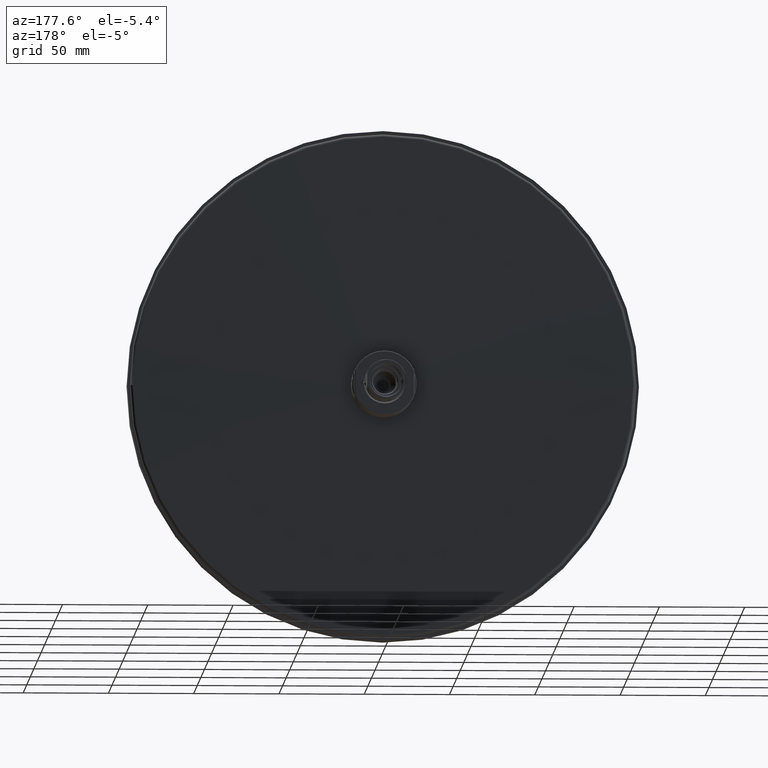
[diagram: clean part render]
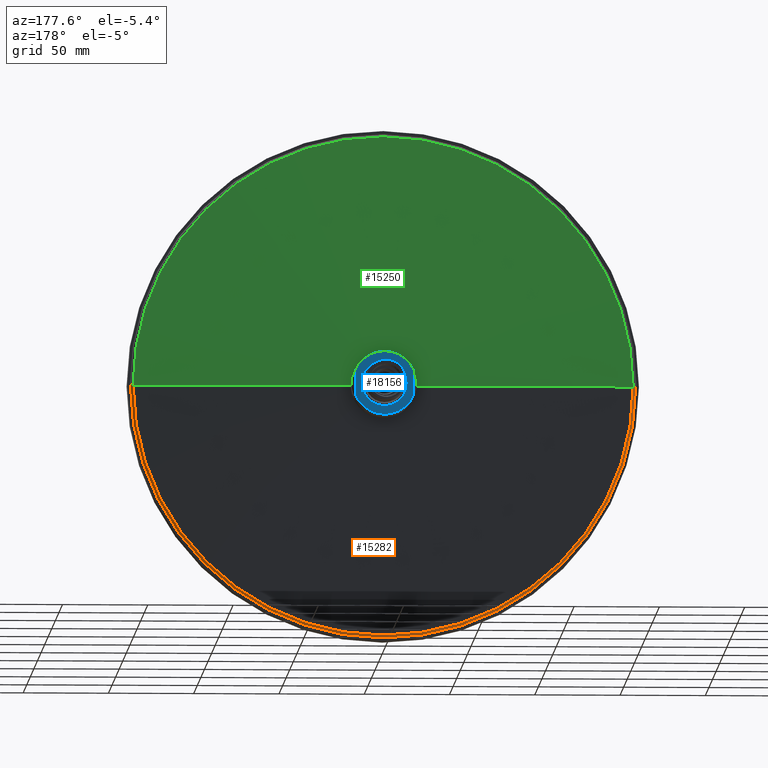
[diagram: same view with three faces highlighted in distinct colors, each labeled with its STEP entity id]
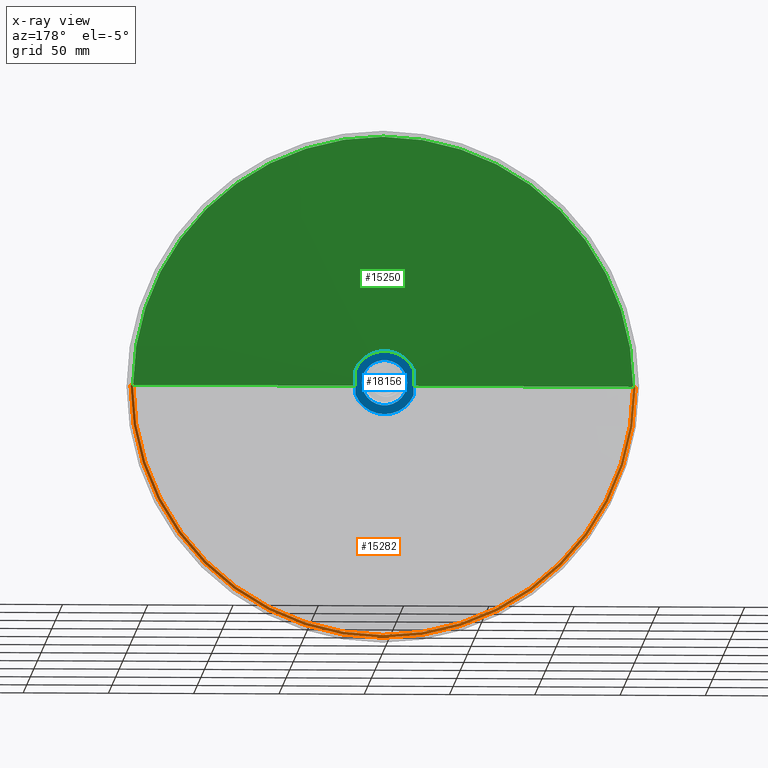
[diagram: x-ray of the same camera — body ghosted, the three highlighted faces saturated]
A machine part, auxiliary view with three faces highlighted in distinct colors.
The next image is the same camera in x-ray (body ghosted, the three faces saturated) — at least one of them is partly hidden behind the body in this view.
Their STEP definitions:

[orange] entity #15282 — the highlighted toroidal blend (fillet) surface has major radius 146.6 mm and minor (blend) radius 1.5 mm.
#15009=CARTESIAN_POINT('',(-1.466E2,3.513033184108E0,3.405609128038E-14));
#15010=DIRECTION('',(0.E0,0.E0,-1.E0));
#15011=DIRECTION('',(-1.E0,0.E0,0.E0));
#15012=AXIS2_PLACEMENT_3D('',#15009,#15010,#15011);
#15027=CARTESIAN_POINT('',(0.E0,5.012976068705E0,0.E0));
#15028=DIRECTION('',(0.E0,1.E0,0.E0));
#15029=DIRECTION('',(1.E0,0.E0,0.E0));
#15030=AXIS2_PLACEMENT_3D('',#15027,#15028,#15029);
#15032=CARTESIAN_POINT('',(0.E0,5.012976068705E0,0.E0));
#15033=DIRECTION('',(0.E0,1.E0,0.E0));
#15034=DIRECTION('',(-9.999989123022E-1,0.E0,-1.474921815007E-3));
#15035=AXIS2_PLACEMENT_3D('',#15032,#15033,#15034);
#15037=CARTESIAN_POINT('',(0.E0,3.513033184108E0,0.E0));
#15038=DIRECTION('',(0.E0,-1.E0,0.E0));
#15039=DIRECTION('',(-1.E0,0.E0,0.E0));
#15040=AXIS2_PLACEMENT_3D('',#15037,#15038,#15039);
#15042=CARTESIAN_POINT('',(0.E0,3.513033184108E0,0.E0));
#15043=DIRECTION('',(0.E0,-1.E0,0.E0));
#15044=DIRECTION('',(-9.999989123022E-1,0.E0,-1.474921815007E-3));
#15045=AXIS2_PLACEMENT_3D('',#15042,#15043,#15044);
#15047=CARTESIAN_POINT('',(1.466E2,3.513033184108E0,-3.405609128038E-14));
#15048=DIRECTION('',(0.E0,0.E0,1.E0));
#15049=DIRECTION('',(1.E0,0.E0,0.E0));
#15050=AXIS2_PLACEMENT_3D('',#15047,#15048,#15049);
#15156=CARTESIAN_POINT('',(-1.481E2,3.513033184108E0,3.627653732963E-14));
#15158=VERTEX_POINT('',#15156);
#15159=CARTESIAN_POINT('',(1.481E2,3.513033184108E0,-1.813701909537E-14));
#15160=VERTEX_POINT('',#15159);
#15165=CARTESIAN_POINT('',(-1.466130898032E2,5.012976068705E0,
3.590985022812E-14));
#15167=VERTEX_POINT('',#15165);
#15169=CARTESIAN_POINT('',(1.466130898032E2,5.012976068705E0,
1.122713033652E-13));
#15170=VERTEX_POINT('',#15169);
#15175=CARTESIAN_POINT('',(-1.466129303325E2,5.012976068705E0,
-2.162428445163E-1));
#15176=VERTEX_POINT('',#15175);
#15177=CARTESIAN_POINT('',(-1.480998389120E2,3.513033184108E0,
-2.184359208025E-1));
#15178=VERTEX_POINT('',#15177);
#15267=CARTESIAN_POINT('',(0.E0,3.513033184108E0,0.E0));
#15268=DIRECTION('',(0.E0,-1.E0,0.E0));
#15269=DIRECTION('',(9.999989123022E-1,0.E0,1.474921815007E-3));
#15270=AXIS2_PLACEMENT_3D('',#15267,#15268,#15269);
#15271=TOROIDAL_SURFACE('',#15270,1.466E2,1.5E0);
#15272=ORIENTED_EDGE('',*,*,#15258,.T.);
#15273=ORIENTED_EDGE('',*,*,#15256,.T.);
#15274=ORIENTED_EDGE('',*,*,#15230,.F.);
#15276=ORIENTED_EDGE('',*,*,#15275,.T.);
#15278=ORIENTED_EDGE('',*,*,#15277,.T.);
#15279=ORIENTED_EDGE('',*,*,#15226,.T.);
#15280=EDGE_LOOP('',(#15272,#15273,#15274,#15276,#15278,#15279));
#15281=FACE_OUTER_BOUND('',#15280,.F.);
#15282=ADVANCED_FACE('',(#15281),#15271,.T.);
#15013=CIRCLE('',#15012,1.5E0);
#15031=CIRCLE('',#15030,1.466130898032E2);
#15036=CIRCLE('',#15035,1.466130898032E2);
#15041=CIRCLE('',#15040,1.481E2);
#15046=CIRCLE('',#15045,1.481E2);
#15051=CIRCLE('',#15050,1.5E0);
#15226=EDGE_CURVE('',#15160,#15170,#15051,.T.);
#15230=EDGE_CURVE('',#15158,#15167,#15013,.T.);
#15256=EDGE_CURVE('',#15176,#15167,#15036,.T.);
#15258=EDGE_CURVE('',#15170,#15176,#15031,.T.);
#15275=EDGE_CURVE('',#15158,#15178,#15041,.T.);
#15277=EDGE_CURVE('',#15178,#15160,#15046,.T.);

[blue] entity #18156 — the highlighted planar face has unit normal (0, -1, 0).
#15764=DIRECTION('',(-1.499829763708E-6,-1.155651761381E-10,9.999999999989E-1));
#15765=VECTOR('',#15764,1.459450716070E1);
#15766=CARTESIAN_POINT('',(-1.700000192383E1,0.E0,-7.297255277821E0));
#15767=LINE('',#15766,#15765);
#15772=CARTESIAN_POINT('',(0.E0,0.E0,0.E0));
#15773=DIRECTION('',(0.E0,-1.E0,0.E0));
#15774=DIRECTION('',(-9.189189189184E-1,0.E0,-3.944464734965E-1));
#15775=AXIS2_PLACEMENT_3D('',#15772,#15773,#15774);
#15777=CARTESIAN_POINT('',(0.E0,0.E0,0.E0));
#15778=DIRECTION('',(0.E0,-1.E0,0.E0));
#15779=DIRECTION('',(9.189189189184E-1,0.E0,3.944464734965E-1));
#15780=AXIS2_PLACEMENT_3D('',#15777,#15778,#15779);
#15782=CARTESIAN_POINT('',(0.E0,-1.065814103640E-14,0.E0));
#15783=DIRECTION('',(0.E0,1.E0,0.E0));
#15784=DIRECTION('',(1.E0,0.E0,0.E0));
#15785=AXIS2_PLACEMENT_3D('',#15782,#15783,#15784);
#15787=CARTESIAN_POINT('',(0.E0,-1.065814103640E-14,0.E0));
#15788=DIRECTION('',(0.E0,1.E0,0.E0));
#15789=DIRECTION('',(-1.E0,0.E0,0.E0));
#15790=AXIS2_PLACEMENT_3D('',#15787,#15788,#15789);
#15817=DIRECTION('',(1.851656715854E-6,-1.084824695742E-10,-9.999999999983E-1));
#15818=VECTOR('',#15817,1.459450721897E1);
#15819=CARTESIAN_POINT('',(1.699999679937E1,-1.050572129291E-10,
7.297255336310E0));
#15820=LINE('',#15819,#15818);
#17509=CARTESIAN_POINT('',(-1.33E1,-1.065814103640E-14,0.E0));
#17510=CARTESIAN_POINT('',(1.33E1,-1.065814103640E-14,0.E0));
#17511=VERTEX_POINT('',#17509);
#17512=VERTEX_POINT('',#17510);
#17513=CARTESIAN_POINT('',(-1.700000192383E1,0.E0,-7.297255277821E0));
#17514=CARTESIAN_POINT('',(-1.700002381311E1,-1.686616790675E-9,
7.297251882862E0));
#17515=VERTEX_POINT('',#17513);
#17516=VERTEX_POINT('',#17514);
#17517=CARTESIAN_POINT('',(1.7E1,0.E0,-7.297259759663E0));
#17518=VERTEX_POINT('',#17517);
#17519=CARTESIAN_POINT('',(1.699999679937E1,-1.050572129291E-10,
7.297255336310E0));
#17520=VERTEX_POINT('',#17519);
#18137=CARTESIAN_POINT('',(0.E0,0.E0,0.E0));
#18138=DIRECTION('',(0.E0,-1.E0,0.E0));
#18139=DIRECTION('',(-1.E0,0.E0,0.E0));
#18140=AXIS2_PLACEMENT_3D('',#18137,#18138,#18139);
#18141=PLANE('',#18140);
#18142=ORIENTED_EDGE('',*,*,#18128,.F.);
#18144=ORIENTED_EDGE('',*,*,#18143,.T.);
#18146=ORIENTED_EDGE('',*,*,#18145,.F.);
#18147=ORIENTED_EDGE('',*,*,#17966,.T.);
#18148=EDGE_LOOP('',(#18142,#18144,#18146,#18147));
#18149=FACE_OUTER_BOUND('',#18148,.F.);
#18151=ORIENTED_EDGE('',*,*,#18150,.T.);
#18153=ORIENTED_EDGE('',*,*,#18152,.T.);
#18154=EDGE_LOOP('',(#18151,#18153));
#18155=FACE_BOUND('',#18154,.F.);
#18156=ADVANCED_FACE('',(#18149,#18155),#18141,.F.);
#15776=CIRCLE('',#15775,1.85E1);
#15781=CIRCLE('',#15780,1.85E1);
#15786=CIRCLE('',#15785,1.33E1);
#15791=CIRCLE('',#15790,1.33E1);
#17966=EDGE_CURVE('',#17520,#17516,#15781,.T.);
#18128=EDGE_CURVE('',#17515,#17516,#15767,.T.);
#18143=EDGE_CURVE('',#17515,#17518,#15776,.T.);
#18145=EDGE_CURVE('',#17520,#17518,#15820,.T.);
#18150=EDGE_CURVE('',#17512,#17511,#15786,.T.);
#18152=EDGE_CURVE('',#17511,#17512,#15791,.T.);

[green] entity #15250 — the highlighted conical surface has half-angle 89.5 deg.
#14989=CARTESIAN_POINT('',(0.E0,5.012976068705E0,0.E0));
#14990=DIRECTION('',(0.E0,1.E0,0.E0));
#14991=DIRECTION('',(-1.E0,0.E0,0.E0));
#14992=AXIS2_PLACEMENT_3D('',#14989,#14990,#14991);
#14994=CARTESIAN_POINT('',(0.E0,5.012976068705E0,0.E0));
#14995=DIRECTION('',(0.E0,1.E0,0.E0));
#14996=DIRECTION('',(9.999989123022E-1,0.E0,1.474921815006E-3));
#14997=AXIS2_PLACEMENT_3D('',#14994,#14995,#14996);
#15014=CARTESIAN_POINT('',(0.E0,6.144965054148E0,0.E0));
#15015=DIRECTION('',(0.E0,1.E0,0.E0));
#15016=DIRECTION('',(-1.E0,0.E0,0.E0));
#15017=AXIS2_PLACEMENT_3D('',#15014,#15015,#15016);
#15019=DIRECTION('',(9.999619230642E-1,-8.726535498368E-3,0.E0));
#15020=VECTOR('',#15019,1.297180290683E2);
#15021=CARTESIAN_POINT('',(1.69E1,6.144965054147E0,0.E0));
#15022=LINE('',#15021,#15020);
#15023=DIRECTION('',(-9.999619230642E-1,-8.726535498368E-3,0.E0));
#15024=VECTOR('',#15023,1.297180290683E2);
#15025=CARTESIAN_POINT('',(-1.69E1,6.144965054147E0,0.E0));
#15026=LINE('',#15025,#15024);
#15165=CARTESIAN_POINT('',(-1.466130898032E2,5.012976068705E0,
3.590985022812E-14));
#15166=CARTESIAN_POINT('',(1.466129303325E2,5.012976068705E0,
2.162428445162E-1));
#15167=VERTEX_POINT('',#15165);
#15168=VERTEX_POINT('',#15166);
#15169=CARTESIAN_POINT('',(1.466130898032E2,5.012976068705E0,
1.122713033652E-13));
#15170=VERTEX_POINT('',#15169);
#15171=CARTESIAN_POINT('',(-1.69E1,6.144965054147E0,0.E0));
#15172=VERTEX_POINT('',#15171);
#15173=CARTESIAN_POINT('',(1.69E1,6.144965054148E0,1.294056220237E-14));
#15174=VERTEX_POINT('',#15173);
#15235=CARTESIAN_POINT('',(0.E0,5.578970561426E0,0.E0));
#15236=DIRECTION('',(0.E0,-1.E0,0.E0));
#15237=DIRECTION('',(-1.E0,0.E0,0.E0));
#15238=AXIS2_PLACEMENT_3D('',#15235,#15236,#15237);
#15239=CONICAL_SURFACE('',#15238,8.175654490160E1,8.95E1);
#15240=ORIENTED_EDGE('',*,*,#15224,.F.);
#15241=ORIENTED_EDGE('',*,*,#15222,.F.);
#15243=ORIENTED_EDGE('',*,*,#15242,.F.);
#15245=ORIENTED_EDGE('',*,*,#15244,.T.);
#15247=ORIENTED_EDGE('',*,*,#15246,.T.);
#15248=EDGE_LOOP('',(#15240,#15241,#15243,#15245,#15247));
#15249=FACE_OUTER_BOUND('',#15248,.F.);
#15250=ADVANCED_FACE('',(#15249),#15239,.T.);
#14993=CIRCLE('',#14992,1.466130898032E2);
#14998=CIRCLE('',#14997,1.466130898032E2);
#15018=CIRCLE('',#15017,1.69E1);
#15222=EDGE_CURVE('',#15167,#15168,#14993,.T.);
#15224=EDGE_CURVE('',#15168,#15170,#14998,.T.);
#15242=EDGE_CURVE('',#15172,#15167,#15026,.T.);
#15244=EDGE_CURVE('',#15172,#15174,#15018,.T.);
#15246=EDGE_CURVE('',#15174,#15170,#15022,.T.);